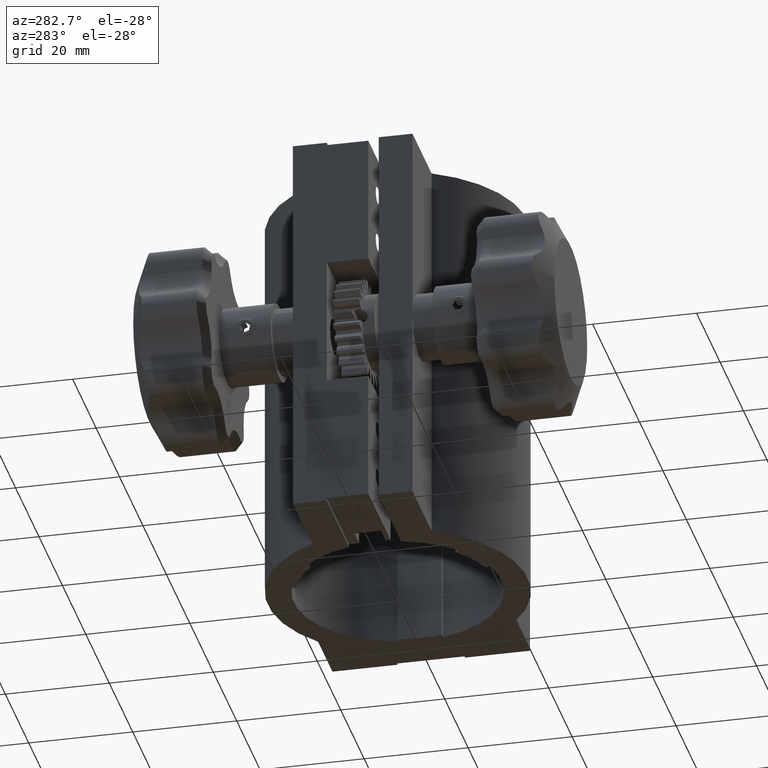
[diagram: clean part render]
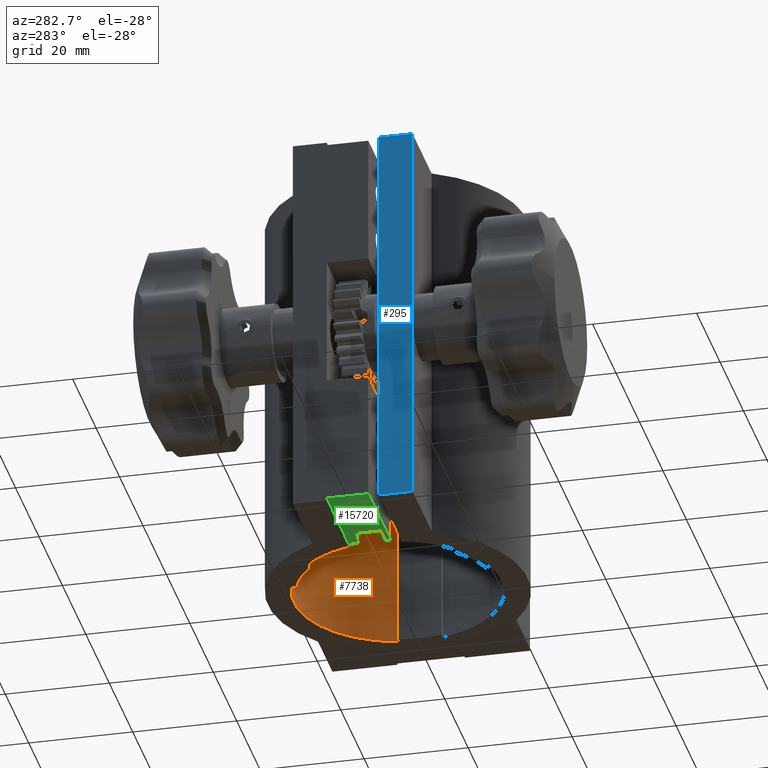
[diagram: same view with three faces highlighted in distinct colors, each labeled with its STEP entity id]
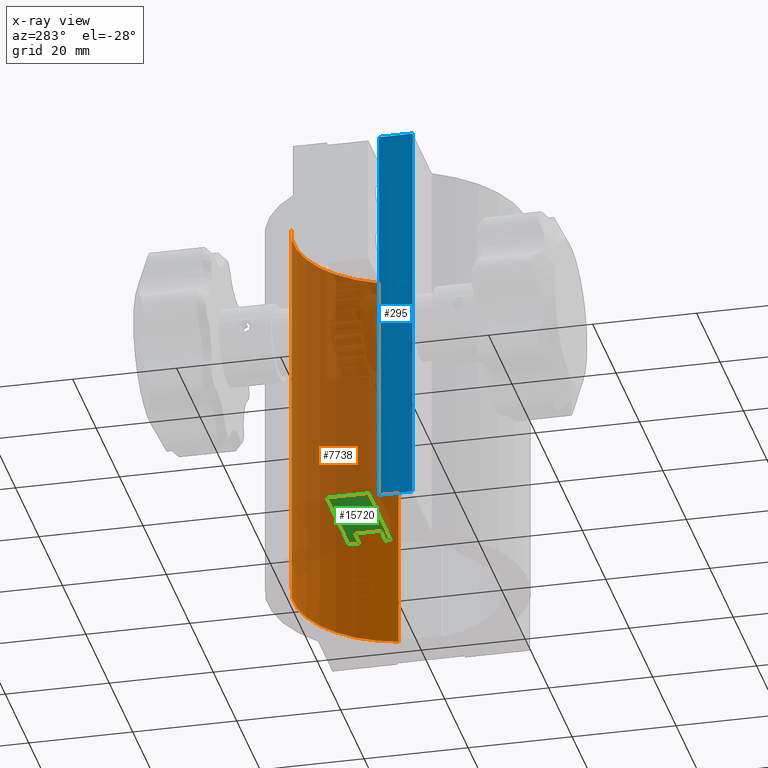
[diagram: x-ray of the same camera — body ghosted, the three highlighted faces saturated]
A machine part, auxiliary view with three faces highlighted in distinct colors.
The next image is the same camera in x-ray (body ghosted, the three faces saturated) — at least one of them is partly hidden behind the body in this view.
Their STEP definitions:

[orange] entity #7738 — the highlighted cylindrical surface (partial cylindrical patch) has radius 20 mm, axis along (-0, 0, -1).
#1006 = AXIS2_PLACEMENT_3D ( 'NONE', #3319, #12045, #4564 ) ;
#1503 = FACE_OUTER_BOUND ( 'NONE', #4125, .T. ) ;
#1916 = VERTEX_POINT ( 'NONE', #13038 ) ;
#2054 = ORIENTED_EDGE ( 'NONE', *, *, #6549, .F. ) ;
#2221 = DIRECTION ( 'NONE',  ( -5.925880749895129100E-031, 3.917341506883637700E-031, -1.000000000000000000 ) ) ;
#2259 = VECTOR ( 'NONE', #2221, 1000.000000000000000 ) ;
#2490 = VERTEX_POINT ( 'NONE', #5547 ) ;
#2965 = ORIENTED_EDGE ( 'NONE', *, *, #5062, .T. ) ;
#3319 = CARTESIAN_POINT ( 'NONE',  ( 0.0000000000000000000, 0.0000000000000000000, 76.00000000000007100 ) ) ;
#4125 = EDGE_LOOP ( 'NONE', ( #2965, #10882, #2054, #15031 ) ) ;
#4186 = CARTESIAN_POINT ( 'NONE',  ( 0.0000000000000000000, 0.0000000000000000000, 0.0000000000000000000 ) ) ;
#4527 = VERTEX_POINT ( 'NONE', #10581 ) ;
#4564 = DIRECTION ( 'NONE',  ( 1.000000000000000000, -2.958228394578794300E-031, 0.0000000000000000000 ) ) ;
#5062 = EDGE_CURVE ( 'NONE', #15914, #4527, #14296, .T. ) ;
#5440 = DIRECTION ( 'NONE',  ( 1.000000000000000000, -2.958228394578794300E-031, 5.925880749895130800E-031 ) ) ;
#5547 = CARTESIAN_POINT ( 'NONE',  ( -6.091002699512627000, 19.04992614459516500, 76.00000000000001400 ) ) ;
#5947 = CARTESIAN_POINT ( 'NONE',  ( 0.0000000000000000000, 0.0000000000000000000, 76.00000000000007100 ) ) ;
#6367 = CIRCLE ( 'NONE', #1006, 20.00000000000000000 ) ;
#6549 = EDGE_CURVE ( 'NONE', #2490, #1916, #6367, .T. ) ;
#7738 = ADVANCED_FACE ( 'NONE', ( #1503 ), #14663, .F. ) ;
#8427 = DIRECTION ( 'NONE',  ( -5.925880749895129100E-031, 3.917341506883637700E-031, -1.000000000000000000 ) ) ;
#8920 = AXIS2_PLACEMENT_3D ( 'NONE', #5947, #8427, #13489 ) ;
#9326 = LINE ( 'NONE', #11826, #12268 ) ;
#9758 = CARTESIAN_POINT ( 'NONE',  ( -6.091002699512627000, 19.04992614459516500, 76.00000000000001400 ) ) ;
#10581 = CARTESIAN_POINT ( 'NONE',  ( 19.54322133119306000, 4.249999999999976000, 0.0000000000000000000 ) ) ;
#10882 = ORIENTED_EDGE ( 'NONE', *, *, #15447, .F. ) ;
#11826 = CARTESIAN_POINT ( 'NONE',  ( 19.54322133119307400, 4.250000000000032000, 76.00000000000004300 ) ) ;
#12045 = DIRECTION ( 'NONE',  ( -5.925880749895129100E-031, 3.917341506883637700E-031, -1.000000000000000000 ) ) ;
#12268 = VECTOR ( 'NONE', #13118, 1000.000000000000000 ) ;
#12960 = DIRECTION ( 'NONE',  ( -5.925880749895129100E-031, 3.917341506883637700E-031, -1.000000000000000000 ) ) ;
#12995 = CARTESIAN_POINT ( 'NONE',  ( -6.091002699512627000, 19.04992614459516500, 2.775557561562891400E-014 ) ) ;
#13038 = CARTESIAN_POINT ( 'NONE',  ( 19.54322133119307400, 4.250000000000032000, 76.00000000000004300 ) ) ;
#13118 = DIRECTION ( 'NONE',  ( -5.925880749895129100E-031, 3.917341506883637700E-031, -1.000000000000000000 ) ) ;
#13171 = AXIS2_PLACEMENT_3D ( 'NONE', #4186, #12960, #5440 ) ;
#13489 = DIRECTION ( 'NONE',  ( -1.000000000000000000, 2.958228394578794300E-031, 0.0000000000000000000 ) ) ;
#13694 = EDGE_CURVE ( 'NONE', #2490, #15914, #15627, .T. ) ;
#14296 = CIRCLE ( 'NONE', #13171, 20.00000000000000000 ) ;
#14663 = CYLINDRICAL_SURFACE ( 'NONE', #8920, 20.00000000000000000 ) ;
#15031 = ORIENTED_EDGE ( 'NONE', *, *, #13694, .T. ) ;
#15447 = EDGE_CURVE ( 'NONE', #1916, #4527, #9326, .T. ) ;
#15627 = LINE ( 'NONE', #9758, #2259 ) ;
#15914 = VERTEX_POINT ( 'NONE', #12995 ) ;

[blue] entity #295 — the highlighted planar face has unit normal (1, -0, -0).
#254 = ORIENTED_EDGE ( 'NONE', *, *, #3400, .T. ) ;
#287 = DIRECTION ( 'NONE',  ( 2.958228394578794300E-031, -1.000000000000000000, 3.917341506883637700E-031 ) ) ;
#295 = ADVANCED_FACE ( 'NONE', ( #4550 ), #1290, .F. ) ;
#403 = ORIENTED_EDGE ( 'NONE', *, *, #11331, .F. ) ;
#666 = DIRECTION ( 'NONE',  ( 2.958228394578794300E-031, -1.000000000000000000, 3.917341506883637700E-031 ) ) ;
#1140 = CARTESIAN_POINT ( 'NONE',  ( -38.50000000000000700, -4.999999999999893400, 2.775557561562891400E-014 ) ) ;
#1290 = PLANE ( 'NONE',  #9412 ) ;
#1691 = VECTOR ( 'NONE', #9237, 1000.000000000000000 ) ;
#1755 = DIRECTION ( 'NONE',  ( 1.000000000000000000, -2.958228394578794300E-031, -5.925880749895129100E-031 ) ) ;
#1804 = CARTESIAN_POINT ( 'NONE',  ( -38.50000000000000700, -4.999999999999948500, 76.00000000000001400 ) ) ;
#1870 = DIRECTION ( 'NONE',  ( -5.925880749895129100E-031, 3.917341506883637700E-031, -1.000000000000000000 ) ) ;
#1918 = CARTESIAN_POINT ( 'NONE',  ( -38.50000000000000700, -11.49999999999989900, 2.775557561562891400E-014 ) ) ;
#2825 = CARTESIAN_POINT ( 'NONE',  ( -38.50000000000000700, -4.999999999999893400, 2.775557561562891400E-014 ) ) ;
#3159 = VECTOR ( 'NONE', #666, 1000.000000000000000 ) ;
#3231 = DIRECTION ( 'NONE',  ( -5.925880749895129100E-031, 3.917341506883637700E-031, -1.000000000000000000 ) ) ;
#3400 = EDGE_CURVE ( 'NONE', #6358, #9349, #15327, .T. ) ;
#3410 = ORIENTED_EDGE ( 'NONE', *, *, #10691, .F. ) ;
#4550 = FACE_OUTER_BOUND ( 'NONE', #11342, .T. ) ;
#6358 = VERTEX_POINT ( 'NONE', #2825 ) ;
#7141 = VERTEX_POINT ( 'NONE', #8337 ) ;
#8065 = LINE ( 'NONE', #10648, #11401 ) ;
#8252 = CARTESIAN_POINT ( 'NONE',  ( -38.50000000000000700, -4.999999999999948500, 76.00000000000001400 ) ) ;
#8337 = CARTESIAN_POINT ( 'NONE',  ( -38.50000000000000700, -4.999999999999948500, 76.00000000000001400 ) ) ;
#9237 = DIRECTION ( 'NONE',  ( -5.925880749895129100E-031, 3.917341506883637700E-031, -1.000000000000000000 ) ) ;
#9349 = VERTEX_POINT ( 'NONE', #1918 ) ;
#9412 = AXIS2_PLACEMENT_3D ( 'NONE', #1804, #1755, #3231 ) ;
#9507 = CARTESIAN_POINT ( 'NONE',  ( -38.50000000000000700, -11.49999999999995400, 76.00000000000001400 ) ) ;
#10648 = CARTESIAN_POINT ( 'NONE',  ( -38.50000000000000700, -11.49999999999995400, 76.00000000000001400 ) ) ;
#10691 = EDGE_CURVE ( 'NONE', #12860, #9349, #8065, .T. ) ;
#11331 = EDGE_CURVE ( 'NONE', #7141, #12860, #13151, .T. ) ;
#11342 = EDGE_LOOP ( 'NONE', ( #254, #3410, #403, #12717 ) ) ;
#11401 = VECTOR ( 'NONE', #1870, 1000.000000000000000 ) ;
#11691 = LINE ( 'NONE', #15490, #1691 ) ;
#11966 = VECTOR ( 'NONE', #287, 1000.000000000000000 ) ;
#12717 = ORIENTED_EDGE ( 'NONE', *, *, #14953, .T. ) ;
#12860 = VERTEX_POINT ( 'NONE', #9507 ) ;
#13151 = LINE ( 'NONE', #8252, #3159 ) ;
#14953 = EDGE_CURVE ( 'NONE', #7141, #6358, #11691, .T. ) ;
#15327 = LINE ( 'NONE', #1140, #11966 ) ;
#15490 = CARTESIAN_POINT ( 'NONE',  ( -38.50000000000000700, -4.999999999999948500, 76.00000000000001400 ) ) ;

[green] entity #15720 — the highlighted planar face has unit normal (0, -0, -1).
#27 = EDGE_CURVE ( 'NONE', #13553, #14765, #7715, .T. ) ;
#111 = CARTESIAN_POINT ( 'NONE',  ( -23.50000000000011000, 3.050000000000103300, 0.4999999999998573400 ) ) ;
#128 = ORIENTED_EDGE ( 'NONE', *, *, #15000, .F. ) ;
#427 = ORIENTED_EDGE ( 'NONE', *, *, #14142, .F. ) ;
#531 = CARTESIAN_POINT ( 'NONE',  ( -19.50000000000009200, -2.049999999999890600, 0.4999999999998319700 ) ) ;
#989 = ORIENTED_EDGE ( 'NONE', *, *, #9430, .F. ) ;
#1388 = LINE ( 'NONE', #10136, #14351 ) ;
#1757 = VECTOR ( 'NONE', #10940, 1000.000000000000000 ) ;
#2168 = LINE ( 'NONE', #15989, #1757 ) ;
#2521 = PLANE ( 'NONE',  #7609 ) ;
#2974 = CARTESIAN_POINT ( 'NONE',  ( -19.50000000000009200, 5.000000000000110100, 0.4999999999998582200 ) ) ;
#3096 = VECTOR ( 'NONE', #6898, 1000.000000000000000 ) ;
#3251 = FACE_OUTER_BOUND ( 'NONE', #8977, .T. ) ;
#3726 = CARTESIAN_POINT ( 'NONE',  ( -19.50000000000009200, -2.999999999999897000, 0.4999999999998321900 ) ) ;
#3848 = CARTESIAN_POINT ( 'NONE',  ( -38.50000000000010700, 5.000000000000111900, 0.4999999999998519000 ) ) ;
#3850 = DIRECTION ( 'NONE',  ( 3.330669073875467200E-016, -2.199498370955853600E-016, -1.000000000000000000 ) ) ;
#3893 = DIRECTION ( 'NONE',  ( -1.000000000000000000, 1.087321085831421500E-016, -3.330669073875467200E-016 ) ) ;
#4369 = VECTOR ( 'NONE', #11293, 1000.000000000000000 ) ;
#5253 = ORIENTED_EDGE ( 'NONE', *, *, #8903, .F. ) ;
#5466 = VECTOR ( 'NONE', #9699, 1000.000000000000000 ) ;
#5527 = EDGE_CURVE ( 'NONE', #5694, #12229, #6212, .T. ) ;
#5694 = VERTEX_POINT ( 'NONE', #10881 ) ;
#5787 = VECTOR ( 'NONE', #14216, 1000.000000000000000 ) ;
#6004 = CARTESIAN_POINT ( 'NONE',  ( -19.50000000000009200, -2.049999999999890600, 0.4999999999998319700 ) ) ;
#6067 = LINE ( 'NONE', #15722, #15663 ) ;
#6212 = LINE ( 'NONE', #2974, #5787 ) ;
#6402 = LINE ( 'NONE', #14802, #16014 ) ;
#6697 = CARTESIAN_POINT ( 'NONE',  ( -19.50000000000009200, 5.000000000000110100, 0.4999999999998582200 ) ) ;
#6898 = DIRECTION ( 'NONE',  ( 1.087321085831422500E-016, 1.000000000000000000, -2.199498370955855800E-016 ) ) ;
#6972 = ORIENTED_EDGE ( 'NONE', *, *, #10965, .F. ) ;
#7431 = ORIENTED_EDGE ( 'NONE', *, *, #5527, .F. ) ;
#7576 = ORIENTED_EDGE ( 'NONE', *, *, #9731, .F. ) ;
#7609 = AXIS2_PLACEMENT_3D ( 'NONE', #11333, #3850, #12631 ) ;
#7715 = LINE ( 'NONE', #9005, #4369 ) ;
#8174 = DIRECTION ( 'NONE',  ( 1.000000000000000000, -1.087321085831421500E-016, 3.330669073875467200E-016 ) ) ;
#8537 = DIRECTION ( 'NONE',  ( -1.000000000000000000, 1.087321085831421500E-016, -3.330669073875467200E-016 ) ) ;
#8794 = LINE ( 'NONE', #14684, #5466 ) ;
#8903 = EDGE_CURVE ( 'NONE', #14232, #9915, #2168, .T. ) ;
#8934 = VERTEX_POINT ( 'NONE', #6004 ) ;
#8977 = EDGE_LOOP ( 'NONE', ( #7431, #989, #12923, #427, #128, #7576, #5253, #6972 ) ) ;
#9005 = CARTESIAN_POINT ( 'NONE',  ( -23.50000000000008900, -2.049999999999889700, 0.4999999999998583900 ) ) ;
#9430 = EDGE_CURVE ( 'NONE', #14765, #5694, #8794, .T. ) ;
#9699 = DIRECTION ( 'NONE',  ( 1.000000000000000000, -3.118913345918262500E-019, 3.330669073875468100E-016 ) ) ;
#9731 = EDGE_CURVE ( 'NONE', #9915, #16302, #6067, .T. ) ;
#9915 = VERTEX_POINT ( 'NONE', #10959 ) ;
#10136 = CARTESIAN_POINT ( 'NONE',  ( -19.50000000000009200, 5.000000000000110100, 0.4999999999998582200 ) ) ;
#10144 = LINE ( 'NONE', #531, #3096 ) ;
#10881 = CARTESIAN_POINT ( 'NONE',  ( -19.50000000000010700, 3.050000000000102900, 0.4999999999998586100 ) ) ;
#10940 = DIRECTION ( 'NONE',  ( -1.087321085831422500E-016, -1.000000000000000000, 2.199498370955855800E-016 ) ) ;
#10959 = CARTESIAN_POINT ( 'NONE',  ( -38.50000000000012100, -2.999999999999895200, 0.4999999999998536200 ) ) ;
#10965 = EDGE_CURVE ( 'NONE', #12229, #14232, #1388, .T. ) ;
#11293 = DIRECTION ( 'NONE',  ( -6.133882043419226400E-017, 1.000000000000000000, -2.199498370955856300E-016 ) ) ;
#11333 = CARTESIAN_POINT ( 'NONE',  ( -19.50000000000009200, -2.049999999999890600, 0.4999999999998319700 ) ) ;
#12229 = VERTEX_POINT ( 'NONE', #6697 ) ;
#12631 = DIRECTION ( 'NONE',  ( 1.000000000000000000, -1.087321085831421500E-016, 3.330669073875467200E-016 ) ) ;
#12923 = ORIENTED_EDGE ( 'NONE', *, *, #27, .F. ) ;
#13553 = VERTEX_POINT ( 'NONE', #14473 ) ;
#14142 = EDGE_CURVE ( 'NONE', #8934, #13553, #6402, .T. ) ;
#14216 = DIRECTION ( 'NONE',  ( 1.087321085831422500E-016, 1.000000000000000000, -2.199498370955855800E-016 ) ) ;
#14232 = VERTEX_POINT ( 'NONE', #3848 ) ;
#14351 = VECTOR ( 'NONE', #3893, 1000.000000000000000 ) ;
#14473 = CARTESIAN_POINT ( 'NONE',  ( -23.50000000000008900, -2.049999999999889700, 0.4999999999998583900 ) ) ;
#14684 = CARTESIAN_POINT ( 'NONE',  ( -19.50000000000010700, 3.050000000000102900, 0.4999999999998586100 ) ) ;
#14765 = VERTEX_POINT ( 'NONE', #111 ) ;
#14802 = CARTESIAN_POINT ( 'NONE',  ( -19.50000000000009200, -2.049999999999890600, 0.4999999999998319700 ) ) ;
#15000 = EDGE_CURVE ( 'NONE', #16302, #8934, #10144, .T. ) ;
#15663 = VECTOR ( 'NONE', #8174, 1000.000000000000000 ) ;
#15720 = ADVANCED_FACE ( 'NONE', ( #3251 ), #2521, .T. ) ;
#15722 = CARTESIAN_POINT ( 'NONE',  ( -19.50000000000009200, -2.999999999999897000, 0.4999999999998321900 ) ) ;
#15989 = CARTESIAN_POINT ( 'NONE',  ( -38.50000000000010700, 5.000000000000111900, 0.4999999999998519000 ) ) ;
#16014 = VECTOR ( 'NONE', #8537, 1000.000000000000000 ) ;
#16302 = VERTEX_POINT ( 'NONE', #3726 ) ;